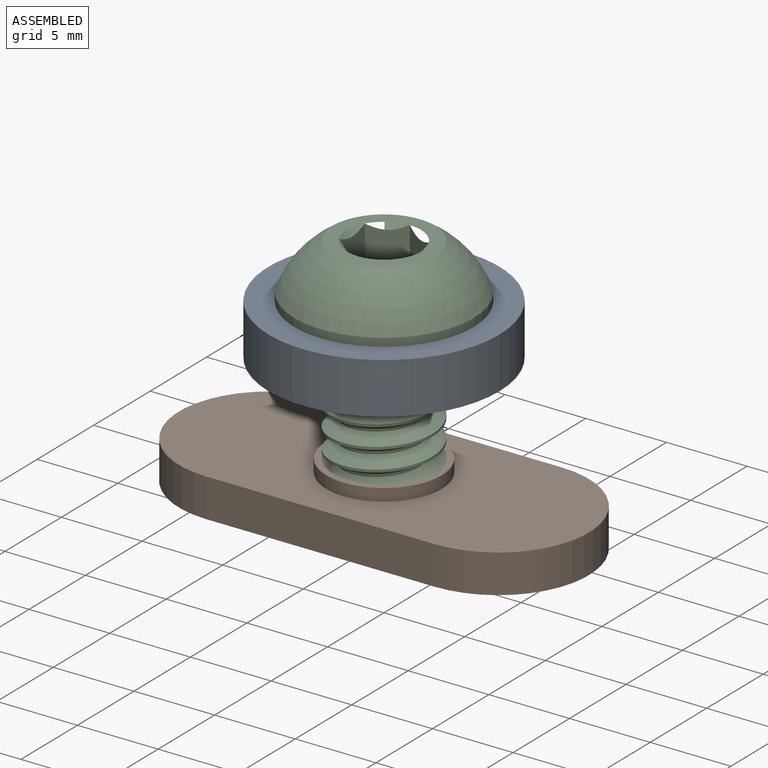
[diagram: assembled view]
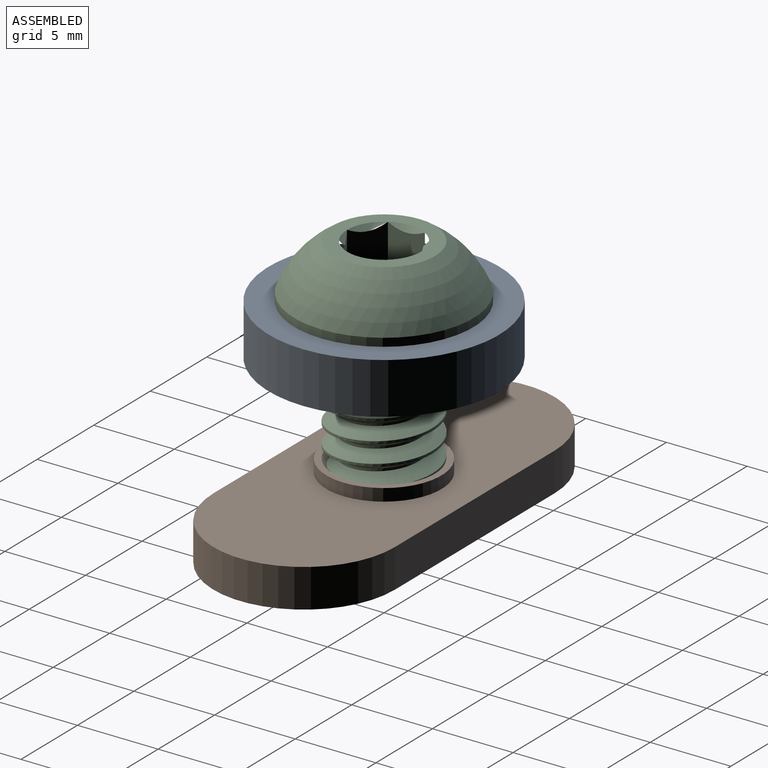
[diagram: assembled view, second angle]
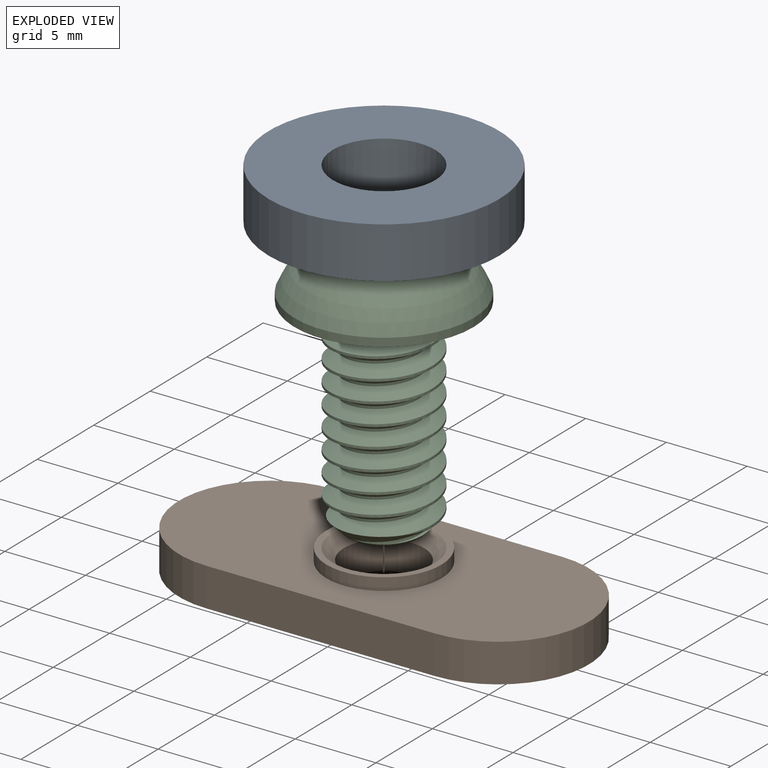
[diagram: exploded view]
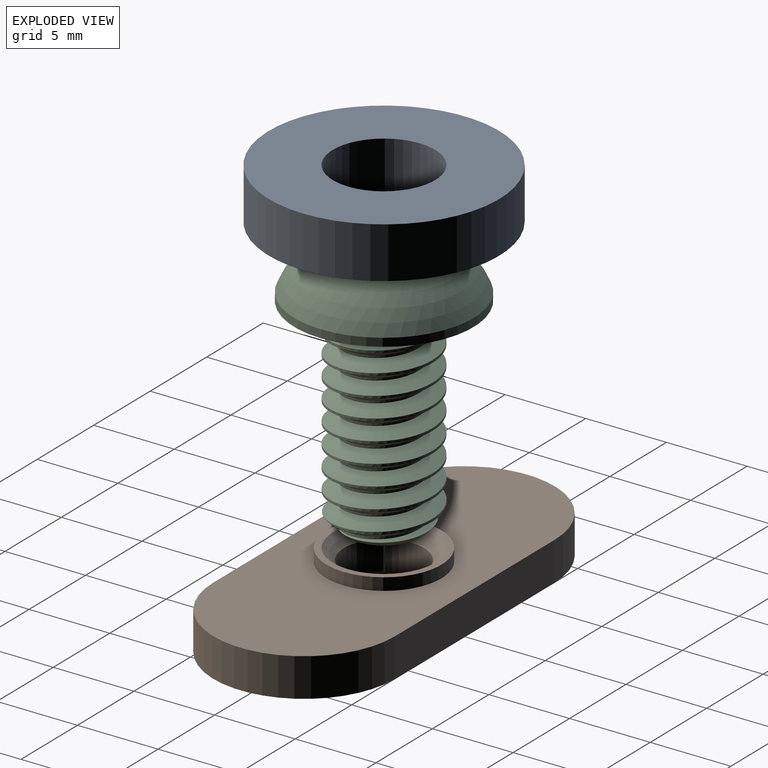
[diagram: exploded view, second angle]
ASSEMBLY  parts=3 mates=4
PART A: 4 faces, bbox 14.3x14.3x3.2 mm
  f0: cylinder r=3.17mm len=6.35mm, axis (0,0,-1), area 63.3mm2, adj f2,f3
  f1: cylinder r=7.14mm len=14.29mm, axis (0,0,-1), area 142.5mm2, adj f2,f3
  f2: plane 14.29x14.29mm, normal (0,0,1), area 128.7mm2, adj f0,f1
  f3: plane 14.29x14.29mm, normal (0,0,-1), area 128.7mm2, adj f0,f1
PART B: 11 faces, bbox 25.4x11.3x3.1 mm
  f0: plane 25.4x11.25mm, normal (0,0,-1), area 227mm2, adj f3,f4,f5,f6,f10
  f1: cylinder r=3.57mm len=7.14mm, axis (0,0,1), area 17.1mm2, adj f2,f7
  f2: plane 25.4x11.25mm, normal (0,0,1), area 218.6mm2, adj f1,f3,f4,f5,f6
  f3: plane 14.15x2.39mm, normal (0,1,0), area 33.8mm2, adj f0,f2,f4,f6
  f4: cylinder r=5.63mm len=11.25mm, axis (0,0,1), area 42.2mm2, adj f0,f2,f3,f5
  f5: plane 14.15x2.39mm, normal (0,-1,0), area 33.8mm2, adj f0,f2,f4,f6
  f6: cylinder r=5.63mm len=11.25mm, axis (0,0,1), area 42.2mm2, adj f0,f2,f3,f5
  f7: plane 7.14x7.14mm, normal (0,0,1), area 8.3mm2, adj f1,f8
  f8: cone r=3.17mm half-angle=45deg, axis (0,0,1), area 17.3mm2, adj f7,f9
  f9: cylinder r=2.49mm len=4.98mm, axis (0,0,1), area 27.8mm2, adj f8,f10
  f10: cone r=2.49mm half-angle=45deg, axis (0,0,-1), area 17.3mm2, adj f0,f9
PART C: 24 faces, bbox 12x12x17.4 mm
  f0: cylinder r=3.17mm len=11.75mm, axis (0,0,-1), area 29.4mm2, adj f2,f4,f6,f9
  f1: cone r=2.22mm half-angle=45deg, axis (0,0,1), area 9.7mm2, adj f2,f3,f4,f5
  f2: cone r=2.22mm half-angle=45deg, axis (0,0,1), area 2.7mm2, adj f0,f1,f4,f6
  f3: plane 4.45x4.45mm, normal (0,0,-1), area 15.5mm2, adj f1
  f4: bspline ~13.65x6.35mm, area 158.6mm2, adj f0,f1,f2,f5,f9
  f5: cylinder r=2.35mm len=12.57mm, axis (0,0,-1), area 23.4mm2, adj f1,f4,f6,f9
  f6: bspline ~13.18x6.35mm, area 158.9mm2, adj f0,f2,f5,f9
  f7: sphere r=5.97mm, area 107mm2, adj f8,f10
  f8: plane 7.09x7.09mm, normal (0,0,1), area 15.2mm2, adj f7,f11,f12,f13,f14,f15,f16
  f9: plane 11.59x11.59mm, normal (0,0,-1), area 72.5mm2, adj f0,f4,f5,f6,f10
  f10: cylinder r=5.55mm len=11.1mm, axis (0,0,1), area 17.5mm2, adj f7,f9
  f11: cone r=2.29mm half-angle=45deg, axis (0,0,1), area 0mm2, adj f8,f18
  f12: cone r=2.29mm half-angle=45deg, axis (0,0,1), area 0mm2, adj f8,f19
  f13: cone r=2.29mm half-angle=45deg, axis (0,0,1), area 0mm2, adj f8,f20
  f14: cone r=2.29mm half-angle=45deg, axis (0,0,1), area 0mm2, adj f8,f21
  f15: cone r=2.29mm half-angle=45deg, axis (0,0,1), area 0mm2, adj f8,f22
  f16: cone r=2.29mm half-angle=45deg, axis (0,0,1), area 0mm2, adj f8,f23
  f17: plane 4.58x3.97mm, normal (0,0,1), area 13.6mm2, adj f18,f19,f20,f21,f22,f23
  f18: plane 3.22x3.16mm, normal (-1,0,0), area 4.9mm2, adj f11,f17,f19,f23
  f19: plane 3.22x2.85mm, normal (-0.5,-0.87,0), area 4.9mm2, adj f12,f17,f18,f20
  f20: plane 3.22x2.85mm, normal (0.5,-0.87,0), area 4.9mm2, adj f13,f17,f19,f21
  f21: plane 3.22x3.16mm, normal (1,0,0), area 4.9mm2, adj f14,f17,f20,f22
  f22: plane 3.22x2.85mm, normal (0.5,0.87,0), area 4.9mm2, adj f15,f17,f21,f23
  f23: plane 3.22x2.85mm, normal (-0.5,0.87,0), area 4.9mm2, adj f16,f17,f18,f22
PLACE A t=(0,0,-23.88)mm
PLACE B t=(0,0,-31.5)mm
PLACE C t=(0,0,-17.35)mm
MATE planar B.f1 <-> C.f0  axis (0,0,1) through (0,0,-30.23)mm
MATE slider B.f1 <-> C.f0  axis (0,0,-1) through (0,0,-32.69)mm
MATE planar A.f0 <-> C.f9  axis (0,0,-1) through (0,0,-20.71)mm
MATE slider A.f0 <-> C.f10  axis (0,0,-1) through (0,0,-20.71)mm
